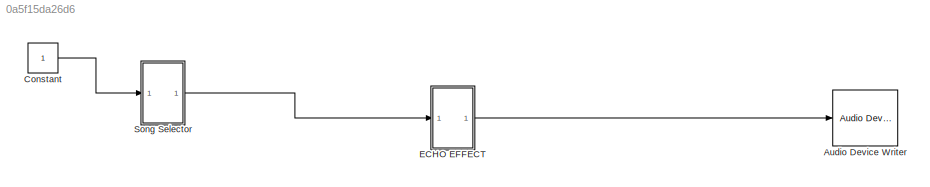
MODEL slx_0a5f15da26d6
KIND model
CONFIG AbsTol = auto
CONFIG EnableMultiTasking = off
CONFIG FixedStep = auto
CONFIG MaxStep = auto
CONFIG MinStep = auto
CONFIG RelTol = 1e-3
CONFIG SampleTimeConstraint = Unconstrained
CONFIG Solver = VariableStepAuto
CONFIG SolverName = VariableStepAuto
CONFIG StartTime = 0.0
CONFIG StopTime = 10.0
BLOCK [Reference] Audio Device Writer  REF=dspsnks4/Audio Device
Writer
  Ports = [1]
  SourceBlock = dspsnks4/Audio Device\nWriter
  SourceProductBaseCode = DS
  SourceType = Audio Device Writer
BLOCK [Constant] Constant
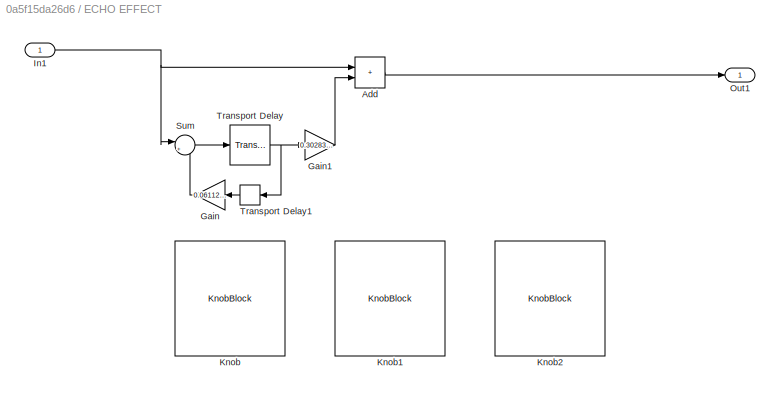
BLOCK [SubSystem] ECHO EFFECT
  Ports = [1, 1]
  RequestExecContextInheritance = off
BLOCK [Sum] ECHO EFFECT/Add
  IconShape = rectangular
  Ports = [2, 1]
BLOCK [Gain] ECHO EFFECT/Gain
  Gain = 0.06112770810232784
BLOCK [Gain] ECHO EFFECT/Gain1
  Gain = 0.3028316157568716
BLOCK [Inport] ECHO EFFECT/In1
BLOCK [KnobBlock] ECHO EFFECT/Knob
  Description = FeedbackLevel
  ScaleMax = 0.5
BLOCK [KnobBlock] ECHO EFFECT/Knob1
  ScaleMax = 1
BLOCK [KnobBlock] ECHO EFFECT/Knob2
  ScaleMax = 1
BLOCK [Outport] ECHO EFFECT/Out1
BLOCK [Sum] ECHO EFFECT/Sum
  Inputs = |++
  Ports = [2, 1]
BLOCK [TransportDelay] ECHO EFFECT/Transport Delay
  DelayTime = 0.2568156941731771
  Ports = [1, 1]
BLOCK [TransportDelay] ECHO EFFECT/Transport Delay1
  DelayTime = 0.1
  Ports = [1, 1]
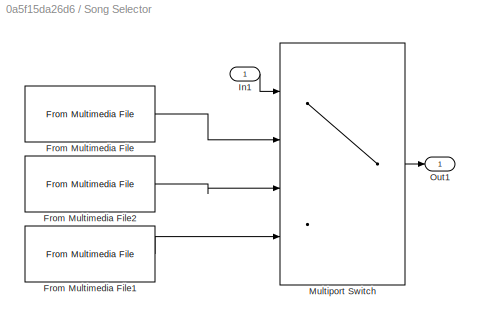
BLOCK [SubSystem] Song Selector
  Ports = [1, 1]
  RequestExecContextInheritance = off
BLOCK [Reference] Song Selector/From Multimedia File  REF=dspvision/From Multimedia File
  Ports = [0, 1]
  SourceBlock = dspvision/From Multimedia File
  SourceProductBaseCode = DS,HW,VP
  SourceType = From Multimedia File
BLOCK [Reference] Song Selector/From Multimedia File1  REF=dspvision/From Multimedia File
  Ports = [0, 1]
  SourceBlock = dspvision/From Multimedia File
  SourceProductBaseCode = DS,HW,VP
  SourceType = From Multimedia File
BLOCK [Reference] Song Selector/From Multimedia File2  REF=dspvision/From Multimedia File
  Ports = [0, 1]
  SourceBlock = dspvision/From Multimedia File
  SourceProductBaseCode = DS,HW,VP
  SourceType = From Multimedia File
BLOCK [Inport] Song Selector/In1
BLOCK [MultiPortSwitch] Song Selector/Multiport Switch
  InputSameDT = off
  Ports = [4, 1]
  SaturateOnIntegerOverflow = off
BLOCK [Outport] Song Selector/Out1
LINE Constant:1 -> Song Selector:1
LINE ECHO EFFECT/Add:1 -> ECHO EFFECT/Out1:1
LINE ECHO EFFECT/Gain1:1 -> ECHO EFFECT/Add:2
LINE ECHO EFFECT/Gain:1 -> ECHO EFFECT/Sum:2
NET ECHO EFFECT/In1:1 -> ECHO EFFECT/Add:1, ECHO EFFECT/Sum:1
LINE ECHO EFFECT/Sum:1 -> ECHO EFFECT/Transport Delay:1
LINE ECHO EFFECT/Transport Delay1:1 -> ECHO EFFECT/Gain:1
NET ECHO EFFECT/Transport Delay:1 -> ECHO EFFECT/Gain1:1, ECHO EFFECT/Transport Delay1:1
LINE ECHO EFFECT:1 -> Audio Device Writer:1
LINE Song Selector/From Multimedia File1:1 -> Song Selector/Multiport Switch:4
LINE Song Selector/From Multimedia File2:1 -> Song Selector/Multiport Switch:3
LINE Song Selector/From Multimedia File:1 -> Song Selector/Multiport Switch:2
LINE Song Selector/In1:1 -> Song Selector/Multiport Switch:1
LINE Song Selector/Multiport Switch:1 -> Song Selector/Out1:1
LINE Song Selector:1 -> ECHO EFFECT:1
note: NET lines group one-source signal fan-out (src -> all destinations, sorted); 1:1 wires keep LINE
